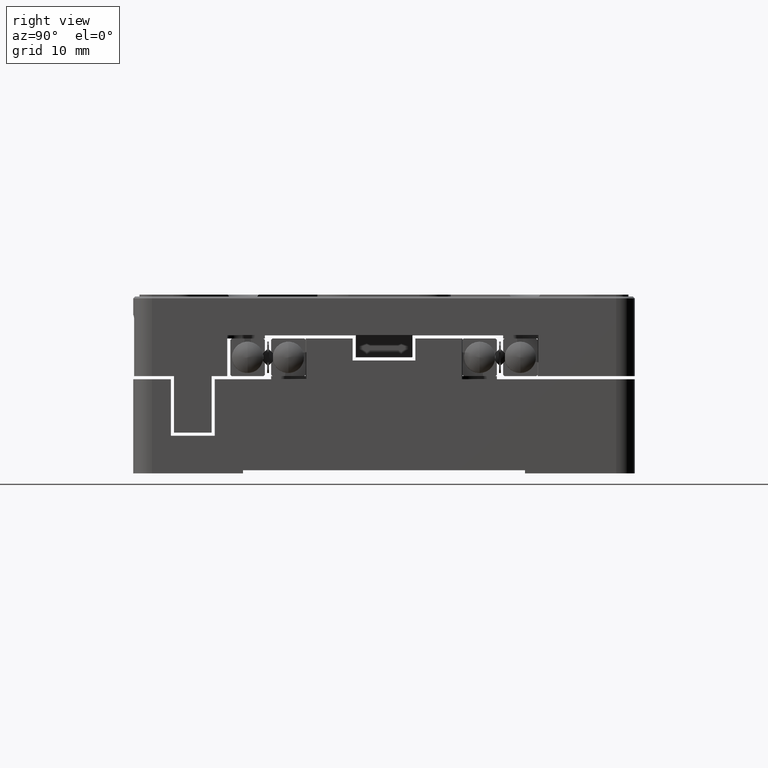
[diagram: clean part render]
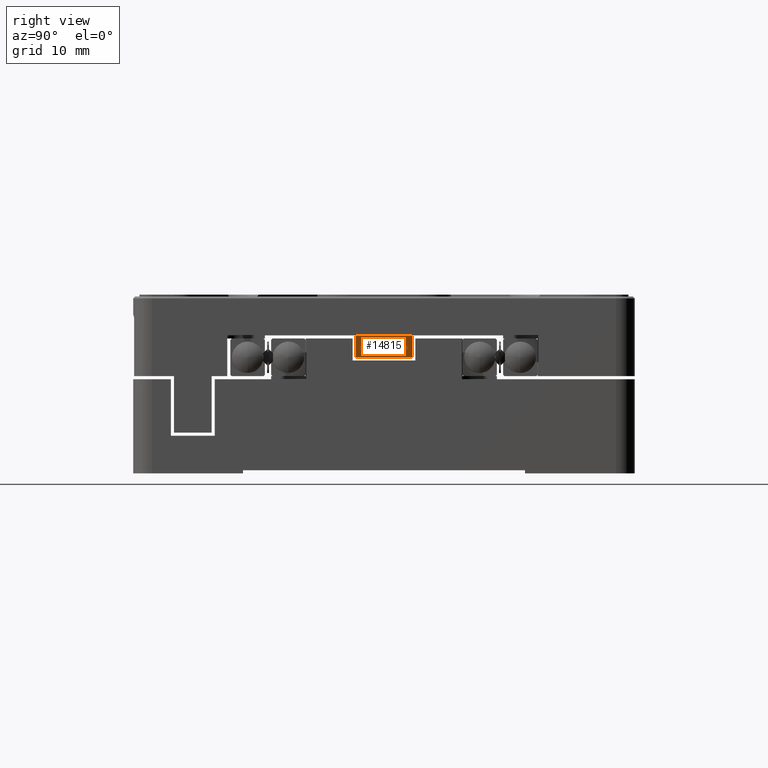
[diagram: same view with one face highlighted and labeled with its STEP entity id]
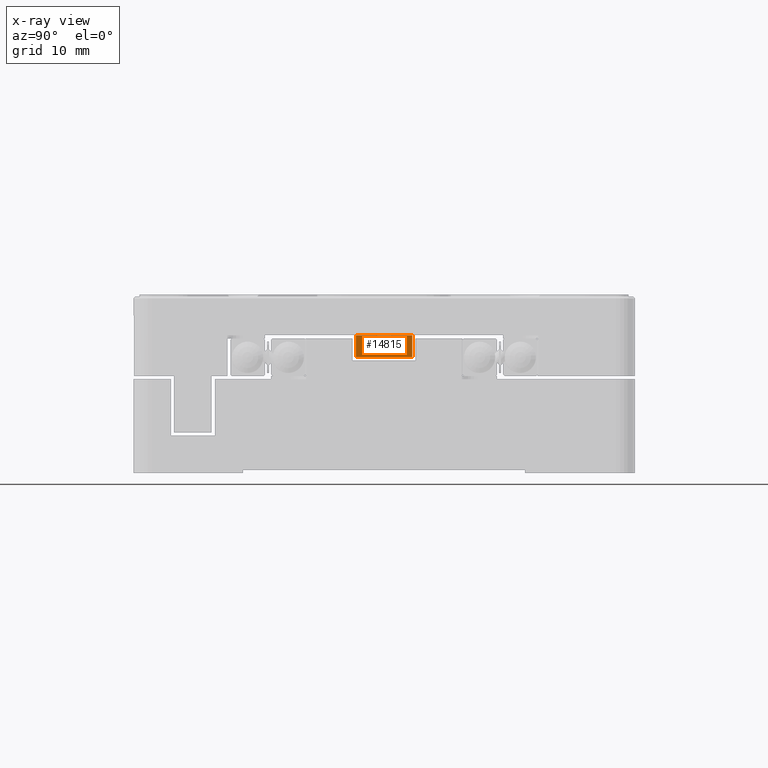
[diagram: x-ray of the same camera — body ghosted, the highlighted face saturated]
A machine part, right view. The second image highlights one B-rep face of the part: STEP entity #14815.
The next image is the same camera in x-ray: the body ghosted, the highlighted face saturated — about 0% of this face is hidden behind the body in this view.
In plain terms, the highlighted planar face has unit normal (-1, 0, 0).
Its self-contained STEP definition (entity closure, byte-faithful):
#974 = VERTEX_POINT ( 'NONE', #2932 ) ;
#2512 = VERTEX_POINT ( 'NONE', #2538 ) ;
#2538 = CARTESIAN_POINT ( 'NONE',  ( 5.000000000000000000, -4.500000000000000000, 3.500000000000000000 ) ) ;
#2932 = CARTESIAN_POINT ( 'NONE',  ( 5.000000000000000000, 4.500000000000000000, 7.000000000000000000 ) ) ;
#3250 = VECTOR ( 'NONE', #22517, 1000.000000000000000 ) ;
#3881 = CARTESIAN_POINT ( 'NONE',  ( 5.000000000000000000, 4.500000000000000000, 3.500000000000000000 ) ) ;
#5442 = FACE_OUTER_BOUND ( 'NONE', #20301, .T. ) ;
#7660 = EDGE_CURVE ( 'NONE', #18270, #974, #23191, .T. ) ;
#8366 = EDGE_CURVE ( 'NONE', #12241, #2512, #18100, .T. ) ;
#9491 = ORIENTED_EDGE ( 'NONE', *, *, #25739, .F. ) ;
#9671 = VECTOR ( 'NONE', #10348, 1000.000000000000000 ) ;
#10348 = DIRECTION ( 'NONE',  ( 0.000000000000000000, 0.000000000000000000, -1.000000000000000000 ) ) ;
#10989 = EDGE_CURVE ( 'NONE', #2512, #18270, #15088, .T. ) ;
#12241 = VERTEX_POINT ( 'NONE', #25653 ) ;
#12384 = LINE ( 'NONE', #3881, #9671 ) ;
#12918 = DIRECTION ( 'NONE',  ( 0.000000000000000000, 0.000000000000000000, 1.000000000000000000 ) ) ;
#13019 = CARTESIAN_POINT ( 'NONE',  ( 5.000000000000000000, -4.500000000000000000, 7.000000000000000000 ) ) ;
#13411 = AXIS2_PLACEMENT_3D ( 'NONE', #23371, #27928, #12918 ) ;
#14411 = PLANE ( 'NONE',  #13411 ) ;
#14815 = ADVANCED_FACE ( 'NONE', ( #5442 ), #14411, .F. ) ;
#15088 = LINE ( 'NONE', #15224, #15442 ) ;
#15224 = CARTESIAN_POINT ( 'NONE',  ( 5.000000000000000000, -4.500000000000000000, 7.000000000000000000 ) ) ;
#15442 = VECTOR ( 'NONE', #19192, 1000.000000000000000 ) ;
#15919 = ORIENTED_EDGE ( 'NONE', *, *, #8366, .F. ) ;
#16008 = DIRECTION ( 'NONE',  ( 0.000000000000000000, 1.000000000000000000, 0.000000000000000000 ) ) ;
#16713 = ORIENTED_EDGE ( 'NONE', *, *, #7660, .F. ) ;
#17759 = VECTOR ( 'NONE', #16008, 1000.000000000000000 ) ;
#18100 = LINE ( 'NONE', #20445, #3250 ) ;
#18270 = VERTEX_POINT ( 'NONE', #13019 ) ;
#19192 = DIRECTION ( 'NONE',  ( 0.000000000000000000, 0.000000000000000000, 1.000000000000000000 ) ) ;
#20301 = EDGE_LOOP ( 'NONE', ( #9491, #16713, #24058, #15919 ) ) ;
#20445 = CARTESIAN_POINT ( 'NONE',  ( 5.000000000000000000, -4.500000000000000000, 3.500000000000000000 ) ) ;
#22517 = DIRECTION ( 'NONE',  ( 0.000000000000000000, -1.000000000000000000, 0.000000000000000000 ) ) ;
#22908 = CARTESIAN_POINT ( 'NONE',  ( 5.000000000000000000, -40.00000000000000000, 7.000000000000000000 ) ) ;
#23191 = LINE ( 'NONE', #22908, #17759 ) ;
#23371 = CARTESIAN_POINT ( 'NONE',  ( 5.000000000000000000, -4.500000000000000000, 3.500000000000000000 ) ) ;
#24058 = ORIENTED_EDGE ( 'NONE', *, *, #10989, .F. ) ;
#25653 = CARTESIAN_POINT ( 'NONE',  ( 5.000000000000000000, 4.500000000000000000, 3.500000000000000000 ) ) ;
#25739 = EDGE_CURVE ( 'NONE', #974, #12241, #12384, .T. ) ;
#27928 = DIRECTION ( 'NONE',  ( -1.000000000000000000, 0.000000000000000000, 0.000000000000000000 ) ) ;